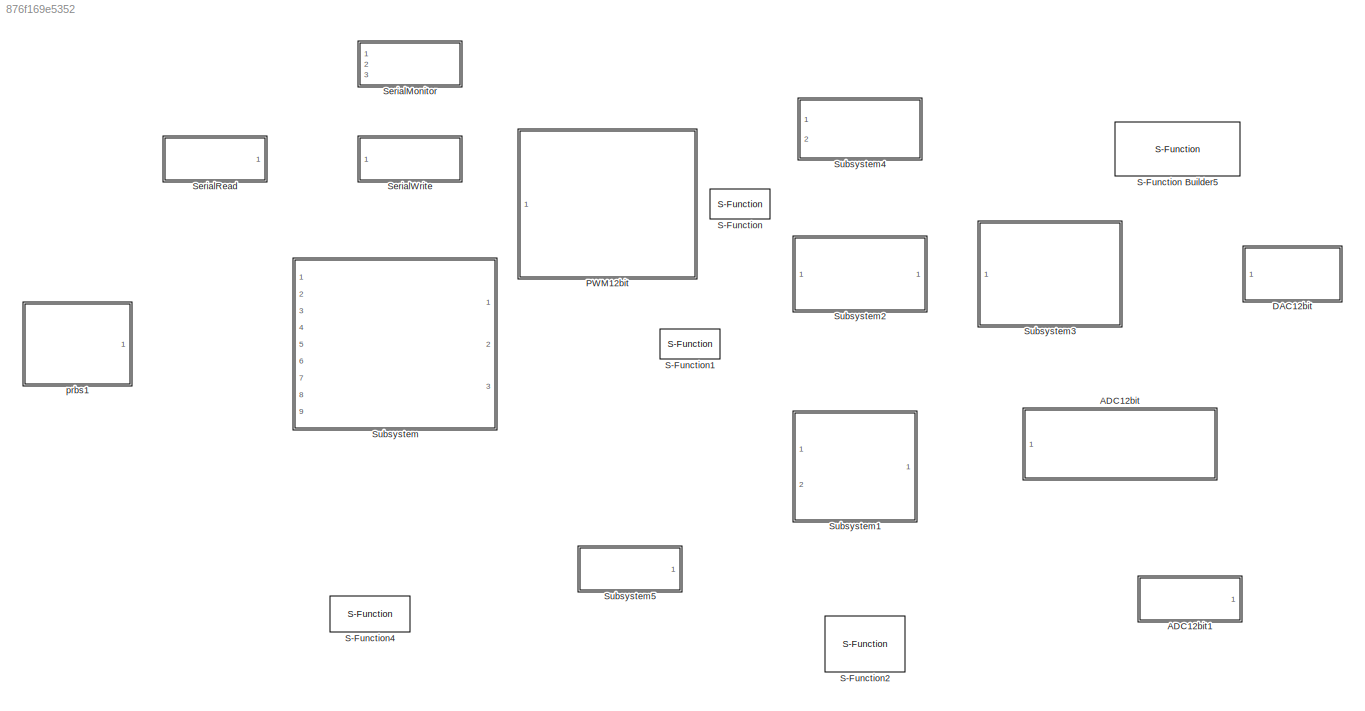
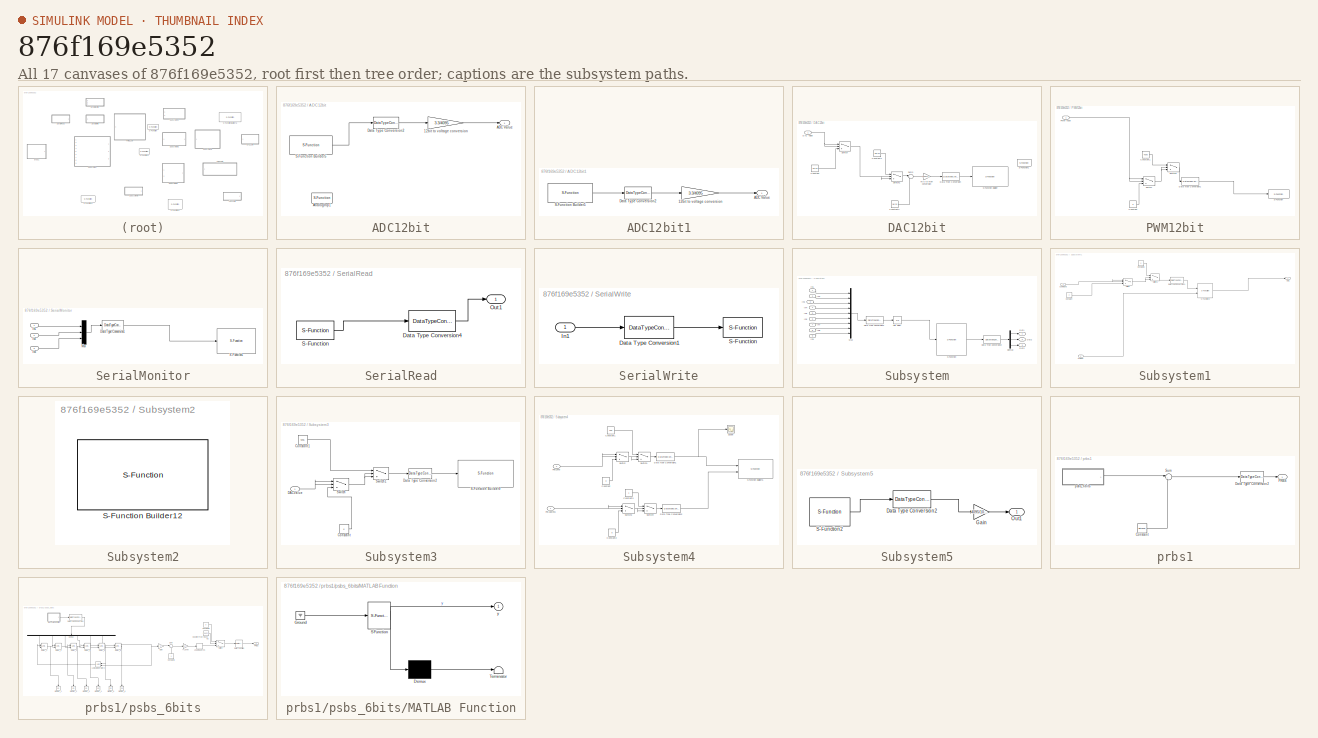
[diagram: thumbnail index - all 17 canvases of the model, root first then tree order]
MODEL slx_876f169e5352
KIND library
CONFIG AbsTol = auto
CONFIG FixedStep = auto
CONFIG MaxStep = auto
CONFIG MinStep = auto
CONFIG RelTol = 1e-3
CONFIG SampleTimeConstraint = Unconstrained
CONFIG Solver = ode45
CONFIG SolverMode = Auto
CONFIG SolverName = ode45
CONFIG StartTime = 0.0
CONFIG StopTime = 10.0
BLOCK [SubSystem] ADC12bit
  Ports = [0, 1]
  RequestExecContextInheritance = off
  Variant = off
BLOCK [Gain] ADC12bit/12bit to voltage conversion
  Gain = 3.3/4095
BLOCK [Outport] ADC12bit/ADC Value
  IconDisplay = Port number
  SampleTime = Tsa
BLOCK [S-Function] ADC12bit/AnalogInp1
  Commented = on
  EnableBusSupport = off
  FunctionName = ADC12bit
  Parameters = int8(pinNum)
  Ports = [0, 1]
  SFunctionDeploymentMode = off
  SFunctionModules = ADC12bit_Wrapper
BLOCK [DataTypeConversion] ADC12bit/Data Type Conversion2
  OutDataTypeStr = double
  RndMeth = Floor
  SaturateOnIntegerOverflow = off
BLOCK [S-Function] ADC12bit/S-Function Builder5
  CopyFcn = set_param(gcbh,'LinkStatus','none')
  EnableBusSupport = off
  FunctionName = ADC12bit
  InitFcn = try, set_param(gcb,'FunctionName','ADC12bit'), end
  OpenFcn = sfunctionwizard(gcbh)
  Parameters = int8(pinNum)
  Ports = [0, 1]
  PreSaveFcn = try, set_param(gcb,'FunctionName','ADC12bit'), end
  SFunctionDeploymentMode = off
  SFunctionModules = ADC12bit_wrapper
BLOCK [SubSystem] ADC12bit1
  Ports = [0, 1]
  RequestExecContextInheritance = off
  Variant = off
BLOCK [Gain] ADC12bit1/12bit to voltage conversion
  Gain = 3.3/4095
BLOCK [Outport] ADC12bit1/ADC Value
  IconDisplay = Port number
  SampleTime = Tsa
BLOCK [DataTypeConversion] ADC12bit1/Data Type Conversion2
  OutDataTypeStr = double
  RndMeth = Floor
  SaturateOnIntegerOverflow = off
BLOCK [S-Function] ADC12bit1/S-Function Builder5
  CopyFcn = set_param(gcbh,'LinkStatus','none')
  EnableBusSupport = off
  FunctionName = ADC12bit
  InitFcn = try, set_param(gcb,'FunctionName','ADC12bit'), end
  OpenFcn = sfunctionwizard(gcbh)
  Parameters = int8(pinNum)
  Ports = [0, 1]
  PreSaveFcn = try, set_param(gcb,'FunctionName','ADC12bit'), end
  SFunctionDeploymentMode = off
  SFunctionModules = ADC12bit_wrapper
BLOCK [SubSystem] DAC12bit
  Ports = [1]
  RequestExecContextInheritance = off
  Variant = off
BLOCK [Constant] DAC12bit/Constant
  Value = 1/6*3.3
BLOCK [Constant] DAC12bit/Constant1
  Value = 5/6*3.3
BLOCK [Constant] DAC12bit/Constant2
  Value = 1/6*3.3
BLOCK [Inport] DAC12bit/DAC Value
  IconDisplay = Port number
  SampleTime = Tsa
BLOCK [DataTypeConversion] DAC12bit/Data Type Conversion
  OutDataTypeStr = int16
  RndMeth = Floor
  SaturateOnIntegerOverflow = off
BLOCK [S-Function] DAC12bit/S-Function Builder
  CopyFcn = set_param(gcbh,'LinkStatus','none')
  EnableBusSupport = off
  FunctionName = DAC12bit
  InitFcn = try, set_param(gcb,'FunctionName','DAC12bit'), end
  OpenFcn = sfunctionwizard(gcbh)
  Parameters = int8(DACNum)
  Ports = [1]
  PreSaveFcn = try, set_param(gcb,'FunctionName','DAC12bit'), end
  SFunctionDeploymentMode = off
  SFunctionModules = DAC12bit_wrapper
BLOCK [S-Function] DAC12bit/S-Function1
  Commented = on
  EnableBusSupport = off
  FunctionName = DAC12bit
  Parameters = int8(dacNum)
  Ports = [1]
  SFunctionDeploymentMode = off
  SFunctionModules = DAC12bit_wrapper
BLOCK [Sum] DAC12bit/Sum3
  IconShape = round
  InputSameDT = off
  Inputs = |+-
  OutDataTypeStr = Inherit: Inherit via internal rule
  Ports = [2, 1]
  SaturateOnIntegerOverflow = off
BLOCK [Switch] DAC12bit/Switch
  Criteria = u2 > Threshold
  InputSameDT = off
  SaturateOnIntegerOverflow = off
  Threshold = 1/6*3.3
BLOCK [Switch] DAC12bit/Switch1
  Criteria = u2 > Threshold
  InputSameDT = off
  SaturateOnIntegerOverflow = off
  Threshold = 5/6*3.3
BLOCK [Gain] DAC12bit/m//s to mph conversion
  Gain = 4095/(3.3*2/3)
BLOCK [SubSystem] PWM12bit
  Ports = [1]
  RequestExecContextInheritance = off
  Variant = off
BLOCK [Constant] PWM12bit/Constant
  Value = 0
BLOCK [Constant] PWM12bit/Constant1
  Value = 4095
BLOCK [DataTypeConversion] PWM12bit/Data Type Conversion1
  RndMeth = Floor
  SaturateOnIntegerOverflow = off
BLOCK [Inport] PWM12bit/PWM vaue
  IconDisplay = Port number
  SampleTime = Tsa
BLOCK [S-Function] PWM12bit/S-Function
  EnableBusSupport = off
  FunctionName = Pwm12BOut
  Parameters = uint32(PwmPort)
  Ports = [1]
  SFunctionDeploymentMode = off
  SFunctionModules = Pwm12BOut_wrapper
BLOCK [Switch] PWM12bit/Switch
  Criteria = u2 > Threshold
  InputSameDT = off
  SaturateOnIntegerOverflow = off
BLOCK [Switch] PWM12bit/Switch1
  Criteria = u2 > Threshold
  InputSameDT = off
  SaturateOnIntegerOverflow = off
  Threshold = 4095
BLOCK [S-Function] S-Function
  EnableBusSupport = off
  FunctionName = pHSensor
  Parameters = int8(0)
  Ports = [1]
  SFunctionDeploymentMode = off
  SFunctionModules = pHSensor_wrapper
BLOCK [S-Function] S-Function Builder5
  Commented = on
  CopyFcn = set_param(gcbh,'LinkStatus','none')
  EnableBusSupport = off
  FunctionName = ADC12bit
  InitFcn = try, set_param(gcb,'FunctionName','ADC12bit'), end
  OpenFcn = sfunctionwizard(gcbh)
  Parameters = int8(pinNum)
  Ports = [0, 1]
  PreSaveFcn = try, set_param(gcb,'FunctionName','ADC12bit'), end
  SFunctionDeploymentMode = off
  SFunctionModules = ADC12bit_wrapper
BLOCK [S-Function] S-Function1
  EnableBusSupport = off
  FunctionName = DACI2C
  Ports = []
  SFunctionDeploymentMode = off
  SFunctionModules = DACI2C_wrapper
BLOCK [S-Function] S-Function2
  EnableBusSupport = off
  FunctionName = PWMRead
  Ports = [0, 1]
  SFunctionDeploymentMode = off
  SFunctionModules = PWMRead_wrapper
BLOCK [S-Function] S-Function4
  EnableBusSupport = off
  FunctionName = pHSensor
  Parameters = int8(2)
  Ports = [1]
  SFunctionDeploymentMode = off
  SFunctionModules = pHSensor_wrapper
BLOCK [SubSystem] SerialMonitor
  Ports = [3]
  RequestExecContextInheritance = off
  Variant = off
BLOCK [DataTypeConversion] SerialMonitor/Data Type Conversion1
  RndMeth = Floor
  SaturateOnIntegerOverflow = off
BLOCK [Inport] SerialMonitor/In1
  IconDisplay = Port number
BLOCK [Inport] SerialMonitor/In2
  IconDisplay = Port number
  Port = 2
BLOCK [Inport] SerialMonitor/In3
  IconDisplay = Port number
  Port = 3
BLOCK [Mux] SerialMonitor/Mux
  DisplayOption = bar
  Inputs = 3
  Ports = [3, 1]
BLOCK [S-Function] SerialMonitor/S-Function1
  EnableBusSupport = off
  FunctionName = SerialMonitorOut
  Parameters = int8(0)
  Ports = [1]
  SFunctionDeploymentMode = off
  SFunctionModules = SerialMonitorOut_wrapper
BLOCK [SubSystem] SerialRead
  Ports = [0, 1]
  RequestExecContextInheritance = off
  Variant = off
BLOCK [DataTypeConversion] SerialRead/Data Type Conversion4
  RndMeth = Floor
  SaturateOnIntegerOverflow = off
BLOCK [Outport] SerialRead/Out1
  IconDisplay = Port number
  SampleTime = Ts
BLOCK [S-Function] SerialRead/S-Function
  EnableBusSupport = off
  FunctionName = SerialIn
  Parameters = int8(serialNum)
  Ports = [0, 1]
  SFunctionDeploymentMode = off
  SFunctionModules = SerialIn_wrapper
BLOCK [SubSystem] SerialWrite
  Ports = [1]
  RequestExecContextInheritance = off
  Variant = off
BLOCK [DataTypeConversion] SerialWrite/Data Type Conversion1
  RndMeth = Floor
  SaturateOnIntegerOverflow = off
BLOCK [Inport] SerialWrite/In1
  IconDisplay = Port number
  SampleTime = Tsa
BLOCK [S-Function] SerialWrite/S-Function
  EnableBusSupport = off
  FunctionName = SerialOut
  Parameters = int8(serialNum)
  Ports = [1]
  SFunctionDeploymentMode = off
  SFunctionModules = SerialOut_wrapper
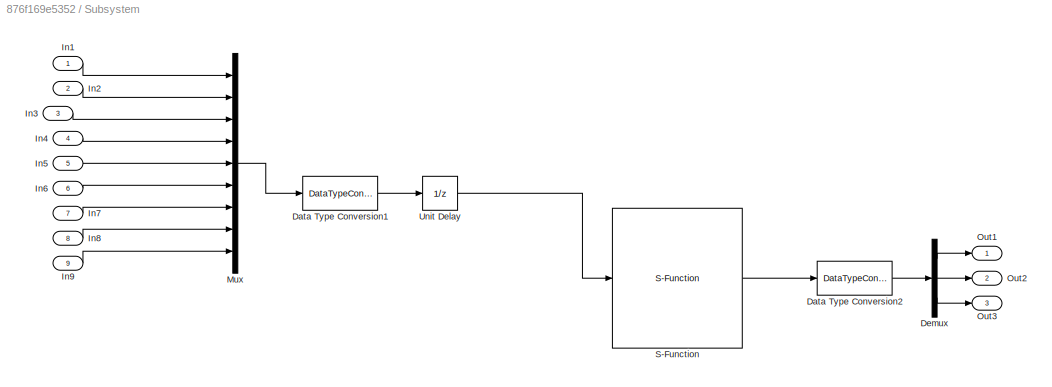
BLOCK [SubSystem] Subsystem
  Ports = [9, 3]
  RequestExecContextInheritance = off
  Variant = off
BLOCK [DataTypeConversion] Subsystem/Data Type Conversion1
  RndMeth = Floor
  SaturateOnIntegerOverflow = off
BLOCK [DataTypeConversion] Subsystem/Data Type Conversion2
  OutDataTypeStr = double
  RndMeth = Floor
  SaturateOnIntegerOverflow = off
BLOCK [Demux] Subsystem/Demux
  DisplayOption = bar
  Outputs = 3
  Ports = [1, 3]
BLOCK [Inport] Subsystem/In1
  IconDisplay = Port number
  SampleTime = Tsa
BLOCK [Inport] Subsystem/In2
  IconDisplay = Port number
  Port = 2
  SampleTime = Tsa
BLOCK [Inport] Subsystem/In3
  IconDisplay = Port number
  Port = 3
  SampleTime = Tsa
BLOCK [Inport] Subsystem/In4
  IconDisplay = Port number
  Port = 4
  SampleTime = Tsa
BLOCK [Inport] Subsystem/In5
  IconDisplay = Port number
  Port = 5
  SampleTime = Tsa
BLOCK [Inport] Subsystem/In6
  IconDisplay = Port number
  Port = 6
  SampleTime = Tsa
BLOCK [Inport] Subsystem/In7
  IconDisplay = Port number
  Port = 7
  SampleTime = Tsa
BLOCK [Inport] Subsystem/In8
  IconDisplay = Port number
  Port = 8
  SampleTime = Tsa
BLOCK [Inport] Subsystem/In9
  IconDisplay = Port number
  Port = 9
  SampleTime = Tsa
BLOCK [Mux] Subsystem/Mux
  DisplayOption = bar
  Inputs = 9
  Ports = [9, 1]
BLOCK [Outport] Subsystem/Out1
  IconDisplay = Port number
  OutDataTypeStr = double
  SampleTime = Tsa
  VarSizeSig = No
BLOCK [Outport] Subsystem/Out2
  IconDisplay = Port number
  OutDataTypeStr = double
  Port = 2
  SampleTime = Tsa
  VarSizeSig = No
BLOCK [Outport] Subsystem/Out3
  IconDisplay = Port number
  OutDataTypeStr = double
  Port = 3
  SampleTime = Tsa
  VarSizeSig = No
BLOCK [S-Function] Subsystem/S-Function
  EnableBusSupport = off
  FunctionName = SerialMonitorOut9
  Parameters = int8(0),int8(rate)
  Ports = [1, 1]
  SFunctionDeploymentMode = off
  SFunctionModules = SerialMonitorOut9_wrapper
BLOCK [UnitDelay] Subsystem/Unit Delay
  InputProcessing = Elements as channels (sample based)
  SampleTime = Tsa
BLOCK [SubSystem] Subsystem1
  Ports = [2, 1]
  RequestExecContextInheritance = off
  Variant = off
BLOCK [Inport] Subsystem1/Command
  IconDisplay = Port number
  SampleTime = Tsa
BLOCK [Constant] Subsystem1/Constant
  Value = 2
BLOCK [Constant] Subsystem1/Constant1
  Value = 0
BLOCK [DataTypeConversion] Subsystem1/Data Type Conversion1
  RndMeth = Floor
  SaturateOnIntegerOverflow = off
BLOCK [Outport] Subsystem1/Out1
  IconDisplay = Port number
BLOCK [S-Function] Subsystem1/S-Function3
  EnableBusSupport = off
  FunctionName = pHRead
  Parameters = int8(PortNum)
  Ports = [2, 1]
  SFunctionDeploymentMode = off
  SFunctionModules = pHRead_wrapper
BLOCK [Switch] Subsystem1/Switch
  Criteria = u2 > Threshold
  InputSameDT = off
  SaturateOnIntegerOverflow = off
  Threshold = 2
BLOCK [Switch] Subsystem1/Switch1
  Criteria = u2 > Threshold
  InputSameDT = off
  SaturateOnIntegerOverflow = off
BLOCK [Inport] Subsystem1/Trigger
  IconDisplay = Port number
  Port = 2
  SampleTime = Tsa
BLOCK [SubSystem] Subsystem2
  Ports = []
  RequestExecContextInheritance = off
  Variant = off
BLOCK [S-Function] Subsystem2/S-Function Builder12
  CopyFcn = set_param(gcbh,'LinkStatus','none')
  EnableBusSupport = off
  FunctionName = DACI2C1
  InitFcn = try, set_param(gcb,'FunctionName','DACI2C1'), end
  OpenFcn = sfunctionwizard(gcbh)
  Ports = []
  PreSaveFcn = try, set_param(gcb,'FunctionName','DACI2C1'), end
  SFunctionDeploymentMode = off
  SFunctionModules = DACI2C1_wrapper
BLOCK [SubSystem] Subsystem3
  Ports = [1]
  RequestExecContextInheritance = off
  Variant = off
BLOCK [Constant] Subsystem3/Constant
  Value = 0
BLOCK [Constant] Subsystem3/Constant1
  Value = 4095
BLOCK [Inport] Subsystem3/DACValue
  IconDisplay = Port number
  SampleTime = Tsa
BLOCK [DataTypeConversion] Subsystem3/Data Type Conversion2
  RndMeth = Floor
  SaturateOnIntegerOverflow = off
BLOCK [S-Function] Subsystem3/S-Function Builder9
  CopyFcn = set_param(gcbh,'LinkStatus','none')
  EnableBusSupport = off
  FunctionName = DACI2CSend
  InitFcn = try, set_param(gcb,'FunctionName','DACI2CSend'), end
  OpenFcn = sfunctionwizard(gcbh)
  Parameters = int8(SlaveAdd)
  Ports = [1]
  PreSaveFcn = try, set_param(gcb,'FunctionName','DACI2CSend'), end
  SFunctionDeploymentMode = off
  SFunctionModules = DACI2CSend_wrapper
BLOCK [Switch] Subsystem3/Switch
  Criteria = u2 > Threshold
  InputSameDT = off
  SaturateOnIntegerOverflow = off
BLOCK [Switch] Subsystem3/Switch1
  Criteria = u2 > Threshold
  InputSameDT = off
  SaturateOnIntegerOverflow = off
  Threshold = 4095
BLOCK [SubSystem] Subsystem4
  Ports = [2]
  RequestExecContextInheritance = off
  Variant = off
BLOCK [Constant] Subsystem4/Constant
  Value = 0
BLOCK [Constant] Subsystem4/Constant1
  Value = 255
BLOCK [Constant] Subsystem4/Constant2
  Value = 0
BLOCK [Constant] Subsystem4/Constant3
BLOCK [DataTypeConversion] Subsystem4/Data Type Conversion1
  RndMeth = Floor
  SaturateOnIntegerOverflow = off
BLOCK [DataTypeConversion] Subsystem4/Data Type Conversion2
  RndMeth = Floor
  SaturateOnIntegerOverflow = off
BLOCK [Inport] Subsystem4/PotAddress
  IconDisplay = Port number
  SampleTime = Tsa
BLOCK [Inport] Subsystem4/PotLevel
  IconDisplay = Port number
  Port = 2
  SampleTime = Tsa
BLOCK [S-Function] Subsystem4/S-Function Builder5
  CopyFcn = set_param(gcbh,'LinkStatus','none')
  EnableBusSupport = off
  FunctionName = SPIPot
  InitFcn = try, set_param(gcb,'FunctionName','SPIPot'), end
  OpenFcn = sfunctionwizard(gcbh)
  Parameters = int8(CS)
  Ports = [2]
  PreSaveFcn = try, set_param(gcb,'FunctionName','SPIPot'), end
  SFunctionDeploymentMode = off
  SFunctionModules = SPIPot_wrapper
BLOCK [Scope] Subsystem4/Scope
  NumInputPorts = 1
  Ports = [1]
  ScopeSpecificationString = Simulink.scopes.TimeScopeBlockCfg('CurrentConfiguration', extmgr.ConfigurationSet(extmgr.Configuration('Core','General UI',true),extmgr.Configuration('Core','Source UI',true),extmgr.Configuration('Sources','WiredSimulink',true),extmgr.Configuration('Visuals','Time Domain',true,'SerializedDisplays',{struct('MinYLimReal','-20.00000','MaxYLimReal','280.00000','YLabelReal','','MinYLimMag','0.00000','M...<+1355ch>
BLOCK [Switch] Subsystem4/Switch
  Criteria = u2 > Threshold
  InputSameDT = off
  SaturateOnIntegerOverflow = off
BLOCK [Switch] Subsystem4/Switch1
  Criteria = u2 > Threshold
  InputSameDT = off
  SaturateOnIntegerOverflow = off
  Threshold = 255
BLOCK [Switch] Subsystem4/Switch3
  Criteria = u2 > Threshold
  InputSameDT = off
  SaturateOnIntegerOverflow = off
BLOCK [Switch] Subsystem4/Switch4
  Criteria = u2 > Threshold
  InputSameDT = off
  SaturateOnIntegerOverflow = off
  Threshold = 1
BLOCK [SubSystem] Subsystem5
  Ports = [0, 1]
  RequestExecContextInheritance = off
  Variant = off
BLOCK [DataTypeConversion] Subsystem5/Data Type Conversion2
  OutDataTypeStr = double
  RndMeth = Floor
  SaturateOnIntegerOverflow = off
BLOCK [Gain] Subsystem5/Gain
  Gain = 4095/1024
  OutDataTypeStr = Inherit: Inherit via internal rule
  ParamDataTypeStr = Inherit: Inherit via internal rule
  SaturateOnIntegerOverflow = off
BLOCK [Outport] Subsystem5/Out1
  IconDisplay = Port number
  SampleTime = Tsa
BLOCK [S-Function] Subsystem5/S-Function2
  EnableBusSupport = off
  FunctionName = PWMRead
  Ports = [0, 1]
  SFunctionDeploymentMode = off
  SFunctionModules = PWMRead_wrapper
BLOCK [SubSystem] prbs1
  Ports = [0, 1]
  RequestExecContextInheritance = off
  Variant = off
BLOCK [Constant] prbs1/Constant
  Value = initLevel
BLOCK [DataTypeConversion] prbs1/Data Type Conversion2
  OutDataTypeStr = int16
  RndMeth = Floor
  SaturateOnIntegerOverflow = off
BLOCK [Outport] prbs1/PRBS
  IconDisplay = Port number
BLOCK [Sum] prbs1/Sum
  IconShape = round
  InputSameDT = off
  Inputs = |++
  OutDataTypeStr = Inherit: Inherit via internal rule
  Ports = [2, 1]
  SaturateOnIntegerOverflow = off
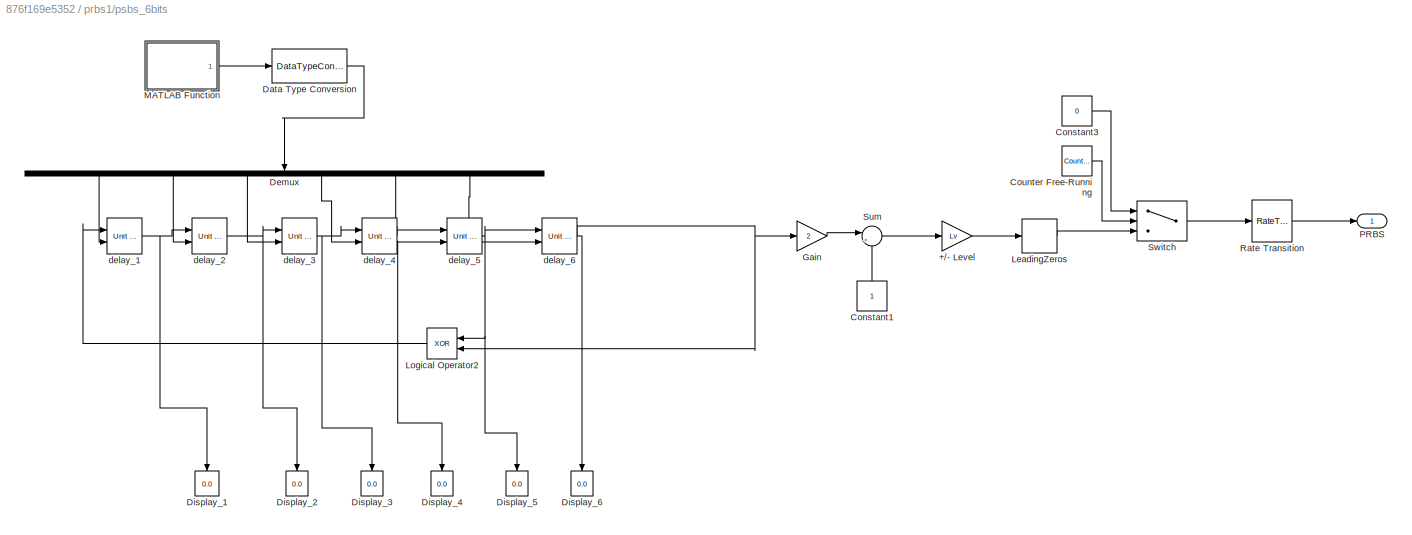
BLOCK [SubSystem] prbs1/psbs_6bits
  Ports = [0, 1]
  RequestExecContextInheritance = off
  Variant = off
BLOCK [Gain] prbs1/psbs_6bits/+//- Level
  Gain = Lv
  OutDataTypeStr = Inherit: Inherit via internal rule
  ParamDataTypeStr = Inherit: Inherit via internal rule
  SampleTime = Tsw
  SaturateOnIntegerOverflow = off
BLOCK [Constant] prbs1/psbs_6bits/Constant1
  SampleTime = Tsw
BLOCK [Constant] prbs1/psbs_6bits/Constant3
  SampleTime = Tsw
  Value = 0
BLOCK [Reference] prbs1/psbs_6bits/Counter Free-Running  REF=simulink/Sources/Counter
Free-Running
  Ports = [0, 1]
  SourceBlock = simulink/Sources/Counter\nFree-Running
  SourceType = Counter Free-Running
BLOCK [DataTypeConversion] prbs1/psbs_6bits/Data Type Conversion
  OutDataTypeStr = int16
  RndMeth = Floor
  SampleTime = Tsw
  SaturateOnIntegerOverflow = off
BLOCK [Demux] prbs1/psbs_6bits/Demux
  DisplayOption = bar
  Outputs = 6
  Ports = [1, 6]
BLOCK [Display] prbs1/psbs_6bits/Display_1
  Decimation = 1
  Ports = [1]
BLOCK [Display] prbs1/psbs_6bits/Display_2
  Decimation = 1
  Ports = [1]
BLOCK [Display] prbs1/psbs_6bits/Display_3
  Decimation = 1
  Ports = [1]
BLOCK [Display] prbs1/psbs_6bits/Display_4
  Decimation = 1
  Ports = [1]
BLOCK [Display] prbs1/psbs_6bits/Display_5
  Decimation = 1
  Ports = [1]
BLOCK [Display] prbs1/psbs_6bits/Display_6
  Decimation = 1
  Ports = [1]
BLOCK [Gain] prbs1/psbs_6bits/Gain
  Gain = 2
  OutDataTypeStr = Inherit: Inherit via internal rule
  ParamDataTypeStr = Inherit: Inherit via internal rule
  SampleTime = Tsw
  SaturateOnIntegerOverflow = off
BLOCK [Delay] prbs1/psbs_6bits/LeadingZeros
  DelayLength = Lz/Tsw
  InitialCondition = 0
  InputPortMap = u0
  Ports = [1, 1]
  SampleTime = Tsw
BLOCK [Logic] prbs1/psbs_6bits/Logical Operator2
  AllPortsSameDT = off
  Operator = XOR
  OutDataTypeStr = fixdt(1,16)
  Ports = [2, 1]
  SampleTime = Tsw
BLOCK [SubSystem] prbs1/psbs_6bits/MATLAB Function
  ErrorFcn = Stateflow.Translate.translate
  PermitHierarchicalResolution = ParametersOnly
  Ports = [0, 1]
  RequestExecContextInheritance = off
  SFBlockType = MATLAB Function
  TreatAsAtomicUnit = on
  Variant = off
BLOCK [Demux] prbs1/psbs_6bits/MATLAB Function/ Demux 
  Outputs = 1
  Ports = [1, 1]
BLOCK [Ground] prbs1/psbs_6bits/MATLAB Function/ Ground 
BLOCK [S-Function] prbs1/psbs_6bits/MATLAB Function/ SFunction 
  EnableBusSupport = on
  FunctionName = sf_sfun
  PortCounts = [1 2]
  Ports = [1, 2]
  SFunctionDeploymentMode = off
  Tag = Stateflow S-Function EEE481Arduino 4
BLOCK [Terminator] prbs1/psbs_6bits/MATLAB Function/ Terminator 
BLOCK [Outport] prbs1/psbs_6bits/MATLAB Function/y
  IconDisplay = Port number
BLOCK [Outport] prbs1/psbs_6bits/PRBS
  IconDisplay = Port number
BLOCK [RateTransition] prbs1/psbs_6bits/Rate Transition
  OutPortSampleTime = T
BLOCK [Sum] prbs1/psbs_6bits/Sum
  IconShape = round
  InputSameDT = off
  Inputs = |+-
  OutDataTypeStr = Inherit: Inherit via internal rule
  Ports = [2, 1]
  SampleTime = Tsw
  SaturateOnIntegerOverflow = off
BLOCK [Switch] prbs1/psbs_6bits/Switch
  InputSameDT = off
  SampleTime = Tsw
  SaturateOnIntegerOverflow = off
  Threshold = (Nc*(2^6-1))+Lz/Tsw
BLOCK [Reference] prbs1/psbs_6bits/delay_1  REF=simulink/Additional Math
& Discrete/Additional
Discrete/Unit Delay
External IC
  Ports = [2, 1]
  SourceBlock = simulink/Additional Math\n& Discrete/Additional\nDiscrete/Unit Delay\nExternal IC
  SourceType = Unit Delay External Initial Condition
BLOCK [Reference] prbs1/psbs_6bits/delay_2  REF=simulink/Additional Math
& Discrete/Additional
Discrete/Unit Delay
External IC
  Ports = [2, 1]
  SourceBlock = simulink/Additional Math\n& Discrete/Additional\nDiscrete/Unit Delay\nExternal IC
  SourceType = Unit Delay External Initial Condition
BLOCK [Reference] prbs1/psbs_6bits/delay_3  REF=simulink/Additional Math
& Discrete/Additional
Discrete/Unit Delay
External IC
  Ports = [2, 1]
  SourceBlock = simulink/Additional Math\n& Discrete/Additional\nDiscrete/Unit Delay\nExternal IC
  SourceType = Unit Delay External Initial Condition
BLOCK [Reference] prbs1/psbs_6bits/delay_4  REF=simulink/Additional Math
& Discrete/Additional
Discrete/Unit Delay
External IC
  Ports = [2, 1]
  SourceBlock = simulink/Additional Math\n& Discrete/Additional\nDiscrete/Unit Delay\nExternal IC
  SourceType = Unit Delay External Initial Condition
BLOCK [Reference] prbs1/psbs_6bits/delay_5  REF=simulink/Additional Math
& Discrete/Additional
Discrete/Unit Delay
External IC
  Ports = [2, 1]
  SourceBlock = simulink/Additional Math\n& Discrete/Additional\nDiscrete/Unit Delay\nExternal IC
  SourceType = Unit Delay External Initial Condition
BLOCK [Reference] prbs1/psbs_6bits/delay_6  REF=simulink/Additional Math
& Discrete/Additional
Discrete/Unit Delay
External IC
  Ports = [2, 1]
  SourceBlock = simulink/Additional Math\n& Discrete/Additional\nDiscrete/Unit Delay\nExternal IC
  SourceType = Unit Delay External Initial Condition
LINE ADC12bit/12bit to voltage conversion:1 -> ADC12bit/ADC Value:1
LINE ADC12bit/Data Type Conversion2:1 -> ADC12bit/12bit to voltage conversion:1
LINE ADC12bit/S-Function Builder5:1 -> ADC12bit/Data Type Conversion2:1
LINE ADC12bit1/12bit to voltage conversion:1 -> ADC12bit1/ADC Value:1
LINE ADC12bit1/Data Type Conversion2:1 -> ADC12bit1/12bit to voltage conversion:1
LINE ADC12bit1/S-Function Builder5:1 -> ADC12bit1/Data Type Conversion2:1
LINE DAC12bit/Constant1:1 -> DAC12bit/Switch1:1
LINE DAC12bit/Constant2:1 -> DAC12bit/Sum3:2
LINE DAC12bit/Constant:1 -> DAC12bit/Switch:3
NET DAC12bit/DAC Value:1 -> DAC12bit/Switch:1, DAC12bit/Switch:2
LINE DAC12bit/Data Type Conversion:1 -> DAC12bit/S-Function Builder:1
LINE DAC12bit/Sum3:1 -> DAC12bit/m//s to mph conversion:1
LINE DAC12bit/Switch1:1 -> DAC12bit/Sum3:1
NET DAC12bit/Switch:1 -> DAC12bit/Switch1:2, DAC12bit/Switch1:3
LINE DAC12bit/m//s to mph conversion:1 -> DAC12bit/Data Type Conversion:1
LINE PWM12bit/Constant1:1 -> PWM12bit/Switch1:1
LINE PWM12bit/Constant:1 -> PWM12bit/Switch:3
LINE PWM12bit/Data Type Conversion1:1 -> PWM12bit/S-Function:1
NET PWM12bit/PWM vaue:1 -> PWM12bit/Switch:1, PWM12bit/Switch:2
LINE PWM12bit/Switch1:1 -> PWM12bit/Data Type Conversion1:1
NET PWM12bit/Switch:1 -> PWM12bit/Switch1:2, PWM12bit/Switch1:3
LINE SerialMonitor/Data Type Conversion1:1 -> SerialMonitor/S-Function1:1
LINE SerialMonitor/In1:1 -> SerialMonitor/Mux:1
LINE SerialMonitor/In2:1 -> SerialMonitor/Mux:2
LINE SerialMonitor/In3:1 -> SerialMonitor/Mux:3
LINE SerialMonitor/Mux:1 -> SerialMonitor/Data Type Conversion1:1
LINE SerialRead/Data Type Conversion4:1 -> SerialRead/Out1:1
LINE SerialRead/S-Function:1 -> SerialRead/Data Type Conversion4:1
LINE SerialWrite/Data Type Conversion1:1 -> SerialWrite/S-Function:1
LINE SerialWrite/In1:1 -> SerialWrite/Data Type Conversion1:1
LINE Subsystem/Data Type Conversion1:1 -> Subsystem/Unit Delay:1
LINE Subsystem/Data Type Conversion2:1 -> Subsystem/Demux:1
LINE Subsystem/Demux:1 -> Subsystem/Out1:1
LINE Subsystem/Demux:2 -> Subsystem/Out2:1
LINE Subsystem/Demux:3 -> Subsystem/Out3:1
LINE Subsystem/In1:1 -> Subsystem/Mux:1
LINE Subsystem/In2:1 -> Subsystem/Mux:2
LINE Subsystem/In3:1 -> Subsystem/Mux:3
LINE Subsystem/In4:1 -> Subsystem/Mux:4
LINE Subsystem/In5:1 -> Subsystem/Mux:5
LINE Subsystem/In6:1 -> Subsystem/Mux:6
LINE Subsystem/In7:1 -> Subsystem/Mux:7
LINE Subsystem/In8:1 -> Subsystem/Mux:8
LINE Subsystem/In9:1 -> Subsystem/Mux:9
LINE Subsystem/Mux:1 -> Subsystem/Data Type Conversion1:1
LINE Subsystem/S-Function:1 -> Subsystem/Data Type Conversion2:1
LINE Subsystem/Unit Delay:1 -> Subsystem/S-Function:1
NET Subsystem1/Command:1 -> Subsystem1/Switch:1, Subsystem1/Switch:2
LINE Subsystem1/Constant1:1 -> Subsystem1/Switch1:1
LINE Subsystem1/Constant:1 -> Subsystem1/Switch:3
LINE Subsystem1/Data Type Conversion1:1 -> Subsystem1/S-Function3:1
LINE Subsystem1/S-Function3:1 -> Subsystem1/Out1:1
LINE Subsystem1/Switch1:1 -> Subsystem1/Data Type Conversion1:1
NET Subsystem1/Switch:1 -> Subsystem1/Switch1:2, Subsystem1/Switch1:3
LINE Subsystem1/Trigger:1 -> Subsystem1/S-Function3:2
LINE Subsystem3/Constant1:1 -> Subsystem3/Switch1:1
LINE Subsystem3/Constant:1 -> Subsystem3/Switch:3
NET Subsystem3/DACValue:1 -> Subsystem3/Switch:1, Subsystem3/Switch:2
LINE Subsystem3/Data Type Conversion2:1 -> Subsystem3/S-Function Builder9:1
LINE Subsystem3/Switch1:1 -> Subsystem3/Data Type Conversion2:1
NET Subsystem3/Switch:1 -> Subsystem3/Switch1:2, Subsystem3/Switch1:3
LINE Subsystem4/Constant1:1 -> Subsystem4/Switch1:1
LINE Subsystem4/Constant2:1 -> Subsystem4/Switch3:3
LINE Subsystem4/Constant3:1 -> Subsystem4/Switch4:1
LINE Subsystem4/Constant:1 -> Subsystem4/Switch:3
NET Subsystem4/Data Type Conversion1:1 -> Subsystem4/S-Function Builder5:1, Subsystem4/Scope:1
LINE Subsystem4/Data Type Conversion2:1 -> Subsystem4/S-Function Builder5:2
NET Subsystem4/PotAddress:1 -> Subsystem4/Switch3:1, Subsystem4/Switch3:2
NET Subsystem4/PotLevel:1 -> Subsystem4/Switch:1, Subsystem4/Switch:2
LINE Subsystem4/Switch1:1 -> Subsystem4/Data Type Conversion1:1
NET Subsystem4/Switch3:1 -> Subsystem4/Switch4:2, Subsystem4/Switch4:3
LINE Subsystem4/Switch4:1 -> Subsystem4/Data Type Conversion2:1
NET Subsystem4/Switch:1 -> Subsystem4/Switch1:2, Subsystem4/Switch1:3
LINE Subsystem5/Data Type Conversion2:1 -> Subsystem5/Gain:1
LINE Subsystem5/Gain:1 -> Subsystem5/Out1:1
LINE Subsystem5/S-Function2:1 -> Subsystem5/Data Type Conversion2:1
LINE prbs1/Constant:1 -> prbs1/Sum:2
LINE prbs1/Data Type Conversion2:1 -> prbs1/PRBS:1
LINE prbs1/Sum:1 -> prbs1/Data Type Conversion2:1
LINE prbs1/psbs_6bits/+//- Level:1 -> prbs1/psbs_6bits/LeadingZeros:1
LINE prbs1/psbs_6bits/Constant1:1 -> prbs1/psbs_6bits/Sum:2
LINE prbs1/psbs_6bits/Constant3:1 -> prbs1/psbs_6bits/Switch:1
LINE prbs1/psbs_6bits/Counter Free-Running:1 -> prbs1/psbs_6bits/Switch:2
LINE prbs1/psbs_6bits/Data Type Conversion:1 -> prbs1/psbs_6bits/Demux:1
LINE prbs1/psbs_6bits/Demux:1 -> prbs1/psbs_6bits/delay_1:2
LINE prbs1/psbs_6bits/Demux:2 -> prbs1/psbs_6bits/delay_2:2
LINE prbs1/psbs_6bits/Demux:3 -> prbs1/psbs_6bits/delay_3:2
LINE prbs1/psbs_6bits/Demux:4 -> prbs1/psbs_6bits/delay_4:2
NET prbs1/psbs_6bits/Demux:5 -> prbs1/psbs_6bits/Display_4:1, prbs1/psbs_6bits/delay_5:2
LINE prbs1/psbs_6bits/Demux:6 -> prbs1/psbs_6bits/delay_6:2
LINE prbs1/psbs_6bits/Gain:1 -> prbs1/psbs_6bits/Sum:1
LINE prbs1/psbs_6bits/LeadingZeros:1 -> prbs1/psbs_6bits/Switch:3
LINE prbs1/psbs_6bits/Logical Operator2:1 -> prbs1/psbs_6bits/delay_1:1
LINE prbs1/psbs_6bits/MATLAB Function:1 -> prbs1/psbs_6bits/Data Type Conversion:1
LINE prbs1/psbs_6bits/Rate Transition:1 -> prbs1/psbs_6bits/PRBS:1
LINE prbs1/psbs_6bits/Sum:1 -> prbs1/psbs_6bits/+//- Level:1
LINE prbs1/psbs_6bits/Switch:1 -> prbs1/psbs_6bits/Rate Transition:1
NET prbs1/psbs_6bits/delay_1:1 -> prbs1/psbs_6bits/Display_1:1, prbs1/psbs_6bits/delay_2:1
NET prbs1/psbs_6bits/delay_2:1 -> prbs1/psbs_6bits/Display_2:1, prbs1/psbs_6bits/delay_3:1
NET prbs1/psbs_6bits/delay_3:1 -> prbs1/psbs_6bits/Display_3:1, prbs1/psbs_6bits/delay_4:1
LINE prbs1/psbs_6bits/delay_4:1 -> prbs1/psbs_6bits/delay_5:1
NET prbs1/psbs_6bits/delay_5:1 -> prbs1/psbs_6bits/Display_5:1, prbs1/psbs_6bits/Logical Operator2:1, prbs1/psbs_6bits/delay_6:1
NET prbs1/psbs_6bits/delay_6:1 -> prbs1/psbs_6bits/Display_6:1, prbs1/psbs_6bits/Gain:1, prbs1/psbs_6bits/Logical Operator2:2
LINE prbs1/psbs_6bits:1 -> prbs1/Sum:1
note: NET lines group one-source signal fan-out (src -> all destinations, sorted); 1:1 wires keep LINE
CHART prbs1/psbs_6bits/MATLAB Function states=1 transitions=1
  STATE_LABEL 'eML_blk_kernel()'
  STATE_LABEL "SCRIPT:\nfunction y = fcn()\n%#codegen\ny = zeros(6,1);\n% % s = de2bi(u,16);\n% s = dec2bin(u,16);\ns = ['1','1','0','1','0','0','1'];\ny(1) = s(end-1)-48;\ny(2) = s(end-2)-48;\ny(3) = s(end-3)-48;\ny(4) = s(end-4)-48;\ny(5) = s(end-5)-48;\ny(6) = s(end-6)-48;\n"
